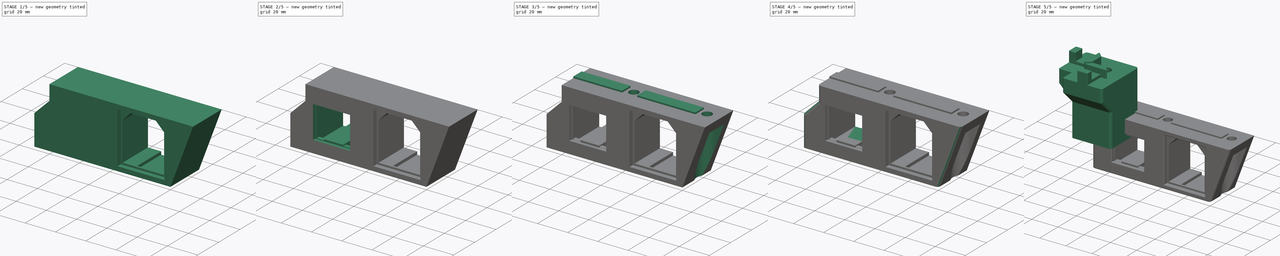
[diagram: build sequence overview — one tinted view per stage of 5, left to right]
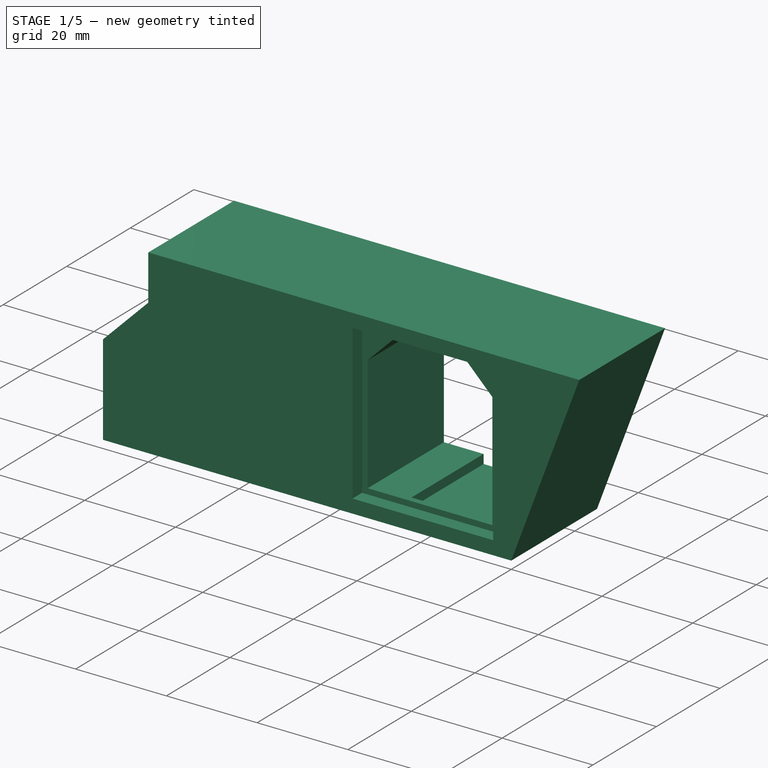
[diagram: stage 1 of 5 — iso view after this stage's code; geometry added in this stage tinted green]
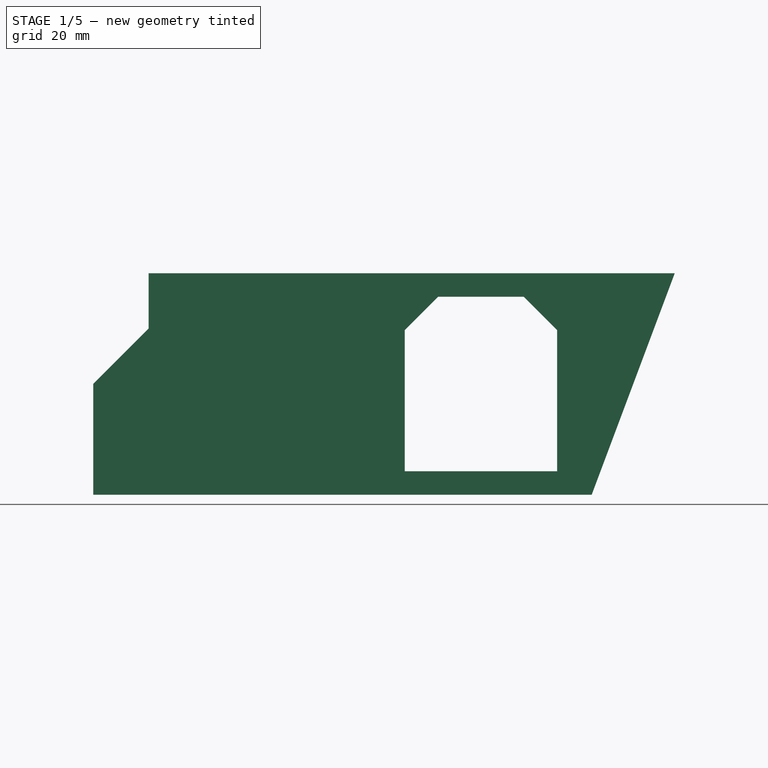
[diagram: stage 1 of 5 — front view after this stage's code; geometry added in this stage tinted green]
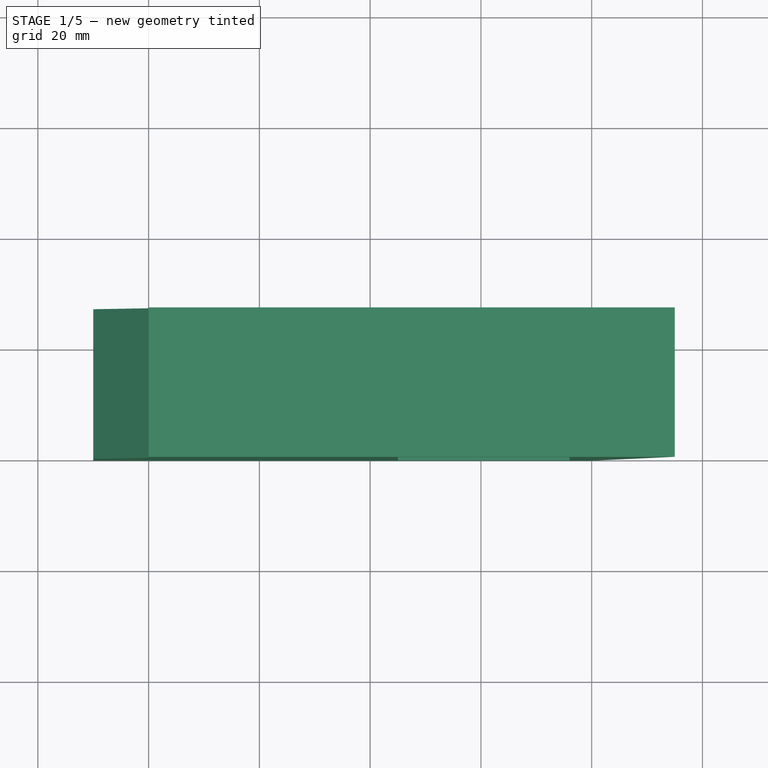
[diagram: stage 1 of 5 — top view after this stage's code; geometry added in this stage tinted green]
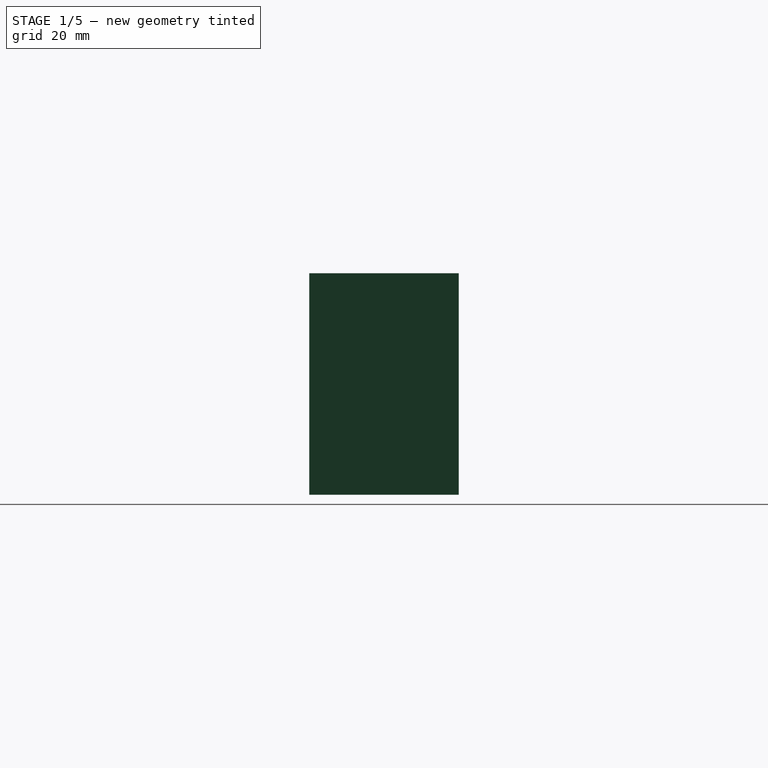
[diagram: stage 1 of 5 — right view after this stage's code; geometry added in this stage tinted green]
FCSTD DOCUMENT  (FreeCAD 0.19R24366 (Git))
Label: outlet-with-switch
License: All rights reserved
LicenseURL: http://en.wikipedia.org/wiki/All_rights_reserved
objects: Sketcher::SketchObject×12, PartDesign::Pocket×10, PartDesign::Chamfer×7, PartDesign::Pad×4, PartDesign::Plane×3, PartDesign::Body×2, Part::Feature×1, PartDesign::FeatureBase×1, PartDesign::Fillet×1
note: 63 computed .brp shape members not serialized (recipe doc carries the construction recipe); baked Part::Feature solids carry a one-line shape summary decoded from their .brp

FEATURE [Part::Feature] Cut008004003004014002002007  label="foot004"
  Placement = pos=(-25,15,-30) rot=(0,0,1;3.14159rad)
  shape: bbox 40.3 x 40.3 x 38.3 mm, 68 faces (baked)
FEATURE [Sketcher::SketchObject] Sketch
  FullyConstrained = true
  MapMode = 5
  Placement = pos=(0,0,0) rot=(1,0,0;1.5708rad)
  Support = -> [XZ_Plane]
  sketch-geometry (6):
    g0: LineSegment StartX=0 StartY=0 StartZ=0 EndX=95 EndY=0 EndZ=0
    g1: LineSegment StartX=0 StartY=0 StartZ=0 EndX=0 EndY=-10 EndZ=0
    g2: LineSegment StartX=0 StartY=-10 StartZ=0 EndX=-10 EndY=-20 EndZ=0
    g3: LineSegment StartX=-10 StartY=-20 StartZ=0 EndX=-10 EndY=-40 EndZ=0
    g4: LineSegment StartX=-10 StartY=-40 StartZ=0 EndX=80 EndY=-40 EndZ=0
    g5: LineSegment StartX=80 StartY=-40 StartZ=0 EndX=95 EndY=0 EndZ=0
  constraints (17):
    c: Horizontal(g0)
    c: Coincident(g0,g-1)
    c: Coincident(g1,g0)
    c: Vertical(g1)
    c: Coincident(g2,g1)
    c: Coincident(g3,g2)
    c: Vertical(g3)
    c: Coincident(g4,g3)
    c: Horizontal(g4)
    c: DistanceY(g1,g1) = 10
    c: Angle(g-2,g2) = 2.35619
    c: DistanceY(g2,g1) = 10
    c: DistanceY(g4,g0) = 40
    c: DistanceX(g0,g4) = 80
    c: Coincident(g0,g5)
    c: Coincident(g5,g4)
    c: DistanceX(g4,g0) = 15
FEATURE [PartDesign::Pad] Pad
  Direction = (1,1,1)
  Length = 27
  Length2 = 100
  Placement = pos=(0,0,0) rot=(1,0,0;1.5708rad)
  Profile = -> Sketch
  Reversed = true
  Type = 0
FEATURE [Sketcher::SketchObject] Sketch001
  FullyConstrained = true
  MapMode = 5
  Placement = pos=(0,0,0) rot=(1,0,0;1.5708rad)
  Support = -> [Pad]
  sketch-geometry (4):
    g0: LineSegment StartX=76 StartY=-3 StartZ=0 EndX=45 EndY=-3 EndZ=0
    g1: LineSegment StartX=45 StartY=-3 StartZ=0 EndX=45 EndY=-37 EndZ=0
    g2: LineSegment StartX=45 StartY=-37 StartZ=0 EndX=76 EndY=-37 EndZ=0
    g3: LineSegment StartX=76 StartY=-37 StartZ=0 EndX=76 EndY=-3 EndZ=0
  constraints (12):
    c: Coincident(g0,g1)
    c: Coincident(g1,g2)
    c: Coincident(g2,g3)
    c: Coincident(g3,g0)
    c: Horizontal(g0)
    c: Horizontal(g2)
    c: Vertical(g1)
    c: Vertical(g3)
    c: DistanceY(g3,g3) = 34
    c: DistanceX(g2,g2) = 31
    c: DistanceY(g0,g-1) = 3
    c: DistanceX(g-1,g1) = 45
FEATURE [PartDesign::Pocket] Pocket
  BaseFeature = -> Pad
  Length = 3
  Length2 = 100
  Placement = pos=(0,0,0) rot=(1,0,0;1.5708rad)
  Profile = -> Sketch001
  Type = 0
FEATURE [Sketcher::SketchObject] Sketch002
  ExternalGeometry = -> [Pocket]
  FullyConstrained = true
  MapMode = 5
  Placement = pos=(0,3,-1e-15) rot=(1,0,0;1.5708rad)
  Support = -> [Pocket]
  sketch-geometry (4):
    g0: LineSegment StartX=46.25 StartY=-4.25 StartZ=0 EndX=73.75 EndY=-4.25 EndZ=0
    g1: LineSegment StartX=73.75 StartY=-4.25 StartZ=0 EndX=73.75 EndY=-35.75 EndZ=0
    g2: LineSegment StartX=73.75 StartY=-35.75 StartZ=0 EndX=46.25 EndY=-35.75 EndZ=0
    g3: LineSegment StartX=46.25 StartY=-35.75 StartZ=0 EndX=46.25 EndY=-4.25 EndZ=0
  constraints (12):
    c: Coincident(g0,g1)
    c: Coincident(g1,g2)
    c: Coincident(g2,g3)
    c: Coincident(g3,g0)
    c: Horizontal(g0)
    c: Horizontal(g2)
    c: Vertical(g1)
    c: Vertical(g3)
    c: DistanceY(g3,g3) = 31.5
    c: DistanceX(g0,g0) = 27.5
    c: DistanceX(g-4,g0) = 1.25
    c: DistanceY(g0,g-4) = 1.25
FEATURE [PartDesign::Pocket] Pocket001
  BaseFeature = -> Pocket
  Length = 5
  Length2 = 100
  Placement = pos=(0,0,0) rot=(1,0,0;1.5708rad)
  Profile = -> Sketch002
  Type = 1
FEATURE [PartDesign::Chamfer] Chamfer
  Angle = 45
  Base = -> Pocket001 [Edge41,Edge37]
  BaseFeature = -> Pocket001
  ChamferType = 0
  FlipDirection = false
  Placement = pos=(0,0,0) rot=(1,0,0;1.5708rad)
  Size = 6
  Size2 = 1
  SupportTransform = false
FEATURE [PartDesign::Plane] DatumPlane
  AttachmentOffset = pos=(0,0,-1.3) rot=(0,0,1;0rad)
  Length = 137.664
  MapMode = 5
  Placement = pos=(0,4.3,-1.9e-15) rot=(1,0,0;1.5708rad)
  ResizeMode = 0
  Support = -> [Chamfer]
  Width = 82.6635
FEATURE [Sketcher::SketchObject] Sketch003
  ExternalGeometry = -> [Chamfer]
  FullyConstrained = true
  MapMode = 5
  Placement = pos=(0,4.3,-1.9e-15) rot=(1,0,0;1.5708rad)
  Support = -> [DatumPlane]
  sketch-geometry (8):
    g0: LineSegment StartX=55 StartY=-4.25 StartZ=0 EndX=65 EndY=-4.25 EndZ=0
    g1: LineSegment StartX=65 StartY=-4.25 StartZ=0 EndX=65 EndY=-2.25 EndZ=0
    g2: LineSegment StartX=65 StartY=-2.25 StartZ=0 EndX=55 EndY=-2.25 EndZ=0
    g3: LineSegment StartX=55 StartY=-2.25 StartZ=0 EndX=55 EndY=-4.25 EndZ=0
    g4: LineSegment StartX=55 StartY=-35.75 StartZ=0 EndX=65 EndY=-35.75 EndZ=0
    g5: LineSegment StartX=65 StartY=-35.75 StartZ=0 EndX=65 EndY=-37.75 EndZ=0
    g6: LineSegment StartX=65 StartY=-37.75 StartZ=0 EndX=55 EndY=-37.75 EndZ=0
    g7: LineSegment StartX=55 StartY=-37.75 StartZ=0 EndX=55 EndY=-35.75 EndZ=0
  constraints (24):
    c: Coincident(g0,g1)
    c: Coincident(g1,g2)
    c: Coincident(g2,g3)
    c: Coincident(g3,g0)
    c: Horizontal(g0)
    c: Horizontal(g2)
    c: Vertical(g1)
    c: Vertical(g3)
    c: PointOnObject(g0,g-4)
    c: Coincident(g4,g5)
    c: Coincident(g5,g6)
    c: Coincident(g6,g7)
    c: Coincident(g7,g4)
    c: Horizontal(g4)
    c: Horizontal(g6)
    c: Vertical(g5)
    c: Vertical(g7)
    c: PointOnObject(g4,g-3)
    c: DistanceX(g6,g6) = 10
    c: DistanceY(g7,g7) = 2
    c: DistanceX(g-3,g4) = 8.75
    c: Vertical(g4,g0)
    c: Vertical(g4,g0)
    c: DistanceY(g3,g3) = 2
FEATURE [PartDesign::Pocket] Pocket002
  BaseFeature = -> Chamfer
  Length = 5
  Length2 = 100
  Placement = pos=(0,0,0) rot=(1,0,0;1.5708rad)
  Profile = -> Sketch003
  Type = 1
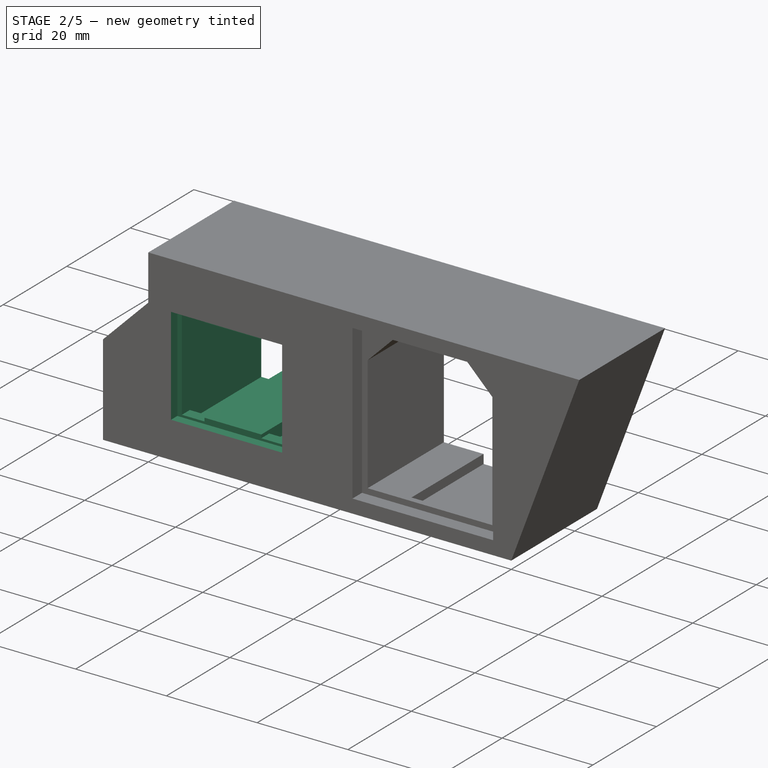
[diagram: stage 2 of 5 — iso view after this stage's code; geometry added in this stage tinted green]
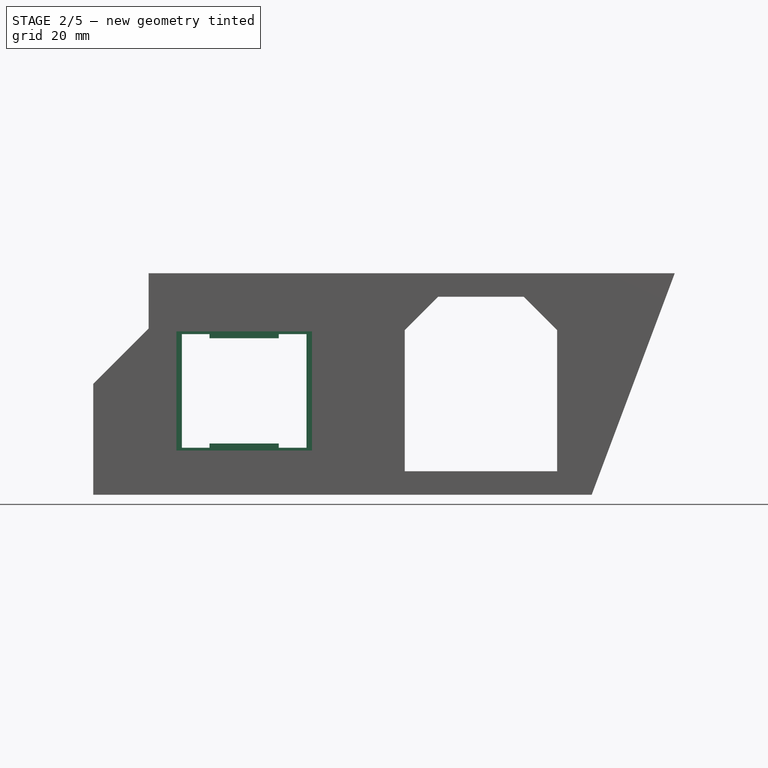
[diagram: stage 2 of 5 — front view after this stage's code; geometry added in this stage tinted green]
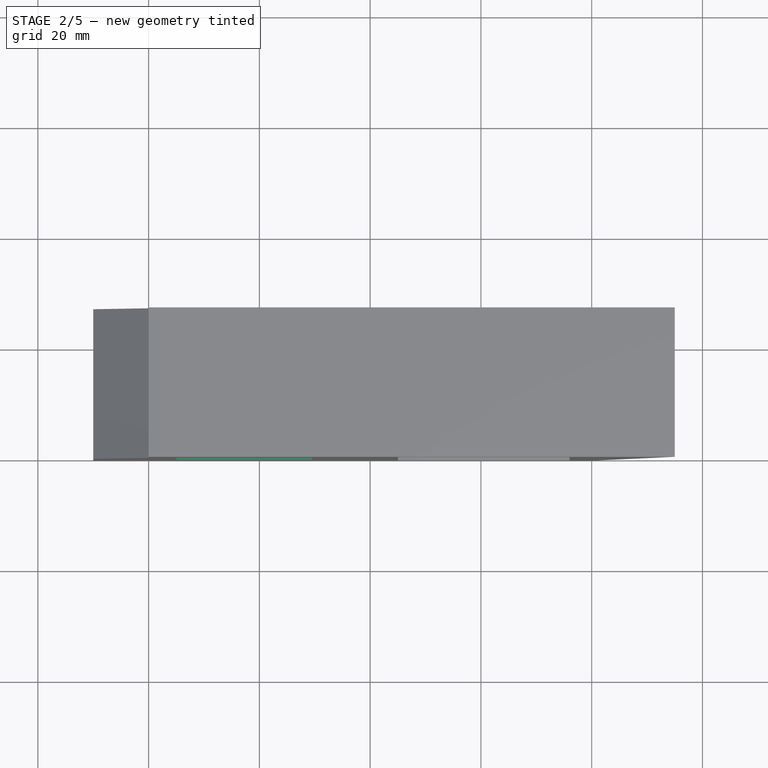
[diagram: stage 2 of 5 — top view after this stage's code; geometry added in this stage tinted green]
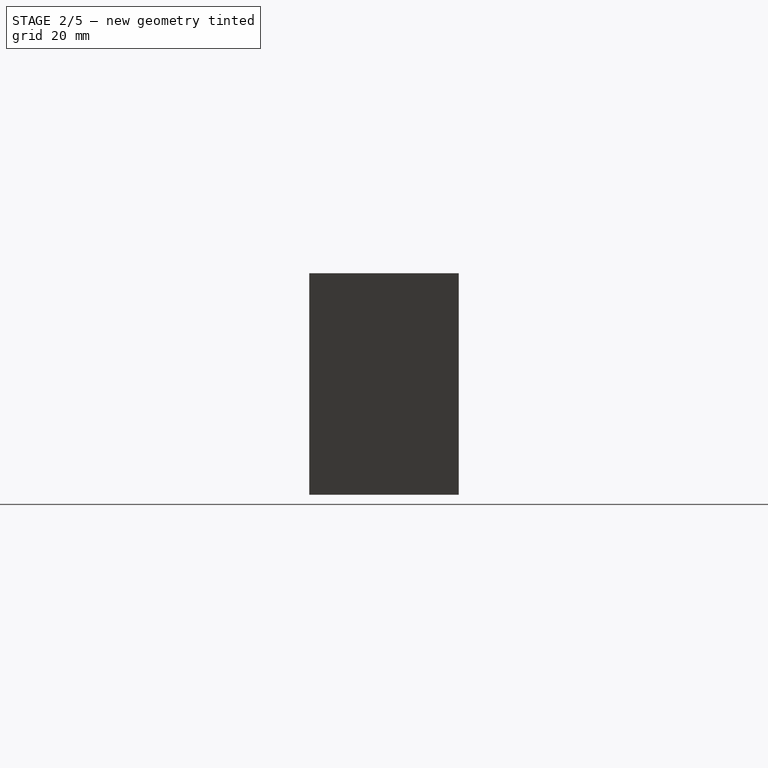
[diagram: stage 2 of 5 — right view after this stage's code; geometry added in this stage tinted green]
FEATURE [Sketcher::SketchObject] Sketch004
  ExternalGeometry = -> [Pocket002]
  FullyConstrained = true
  MapMode = 5
  Placement = pos=(0,0,0) rot=(1,0,0;1.5708rad)
  Support = -> [Pocket002]
  sketch-geometry (4):
    g0: LineSegment StartX=5 StartY=-10.5 StartZ=0 EndX=29.5 EndY=-10.5 EndZ=0
    g1: LineSegment StartX=29.5 StartY=-10.5 StartZ=0 EndX=29.5 EndY=-32 EndZ=0
    g2: LineSegment StartX=29.5 StartY=-32 StartZ=0 EndX=5 EndY=-32 EndZ=0
    g3: LineSegment StartX=5 StartY=-32 StartZ=0 EndX=5 EndY=-10.5 EndZ=0
  constraints (12):
    c: Coincident(g0,g1)
    c: Coincident(g1,g2)
    c: Coincident(g2,g3)
    c: Coincident(g3,g0)
    c: Horizontal(g0)
    c: Horizontal(g2)
    c: Vertical(g1)
    c: Vertical(g3)
    c: DistanceX(g0,g0) = 24.5
    c: DistanceY(g3,g3) = 21.5
    c: DistanceY(g-4,g2) = 8
    c: DistanceX(g-4,g2) = 15
FEATURE [PartDesign::Pocket] Pocket003
  BaseFeature = -> Pocket002
  Length = 2
  Length2 = 100
  Placement = pos=(0,0,0) rot=(1,0,0;1.5708rad)
  Profile = -> Sketch004
  Type = 0
FEATURE [Sketcher::SketchObject] Sketch005
  ExternalGeometry = -> [Pocket003]
  FullyConstrained = true
  MapMode = 5
  Placement = pos=(0,2,-1.1e-15) rot=(1,0,0;1.5708rad)
  Support = -> [Pocket003]
  sketch-geometry (4):
    g0: LineSegment StartX=6 StartY=-11.75 StartZ=0 EndX=28.5 EndY=-11.75 EndZ=0
    g1: LineSegment StartX=28.5 StartY=-11.75 StartZ=0 EndX=28.5 EndY=-30.75 EndZ=0
    g2: LineSegment StartX=28.5 StartY=-30.75 StartZ=0 EndX=6 EndY=-30.75 EndZ=0
    g3: LineSegment StartX=6 StartY=-30.75 StartZ=0 EndX=6 EndY=-11.75 EndZ=0
  constraints (14):
    c: Coincident(g0,g1)
    c: Coincident(g1,g2)
    c: Coincident(g2,g3)
    c: Coincident(g3,g0)
    c: Horizontal(g0)
    c: Horizontal(g2)
    c: Vertical(g1)
    c: Vertical(g3)
    c: DistanceX(g0,g0) = 22.5
    c: DistanceY(g3,g3) = 19
    c: DistanceX(g-3,g-3) = 24.5
    c: DistanceY(g-4,g-4) = 21.5
    c: DistanceX(g-3,g0) = 1
    c: DistanceY(g0,g-4) = 1.25
FEATURE [PartDesign::Pocket] Pocket004
  BaseFeature = -> Pocket003
  Length = 5
  Length2 = 100
  Placement = pos=(0,0,0) rot=(1,0,0;1.5708rad)
  Profile = -> Sketch005
  Type = 1
FEATURE [Sketcher::SketchObject] Sketch006
  ExternalGeometry = -> [Pocket004]
  FullyConstrained = true
  MapMode = 5
  Placement = pos=(0,2,-1.3e-15) rot=(1,0,0;1.5708rad)
  Support = -> [Pocket004]
  sketch-geometry (16):
    g0: LineSegment StartX=6 StartY=-11.75 StartZ=0 EndX=11 EndY=-11.75 EndZ=0
    g1: LineSegment StartX=11 StartY=-11.75 StartZ=0 EndX=11 EndY=-11 EndZ=0
    g2: LineSegment StartX=11 StartY=-11 StartZ=0 EndX=6 EndY=-11 EndZ=0
    g3: LineSegment StartX=6 StartY=-11 StartZ=0 EndX=6 EndY=-11.75 EndZ=0
    g4: LineSegment StartX=28.5 StartY=-11.75 StartZ=0 EndX=23.5 EndY=-11.75 EndZ=0
    g5: LineSegment StartX=23.5 StartY=-11.75 StartZ=0 EndX=23.5 EndY=-11 EndZ=0
    g6: LineSegment StartX=23.5 StartY=-11 StartZ=0 EndX=28.5 EndY=-11 EndZ=0
    g7: LineSegment StartX=28.5 StartY=-11 StartZ=0 EndX=28.5 EndY=-11.75 EndZ=0
    g8: LineSegment StartX=6 StartY=-30.75 StartZ=0 EndX=11 EndY=-30.75 EndZ=0
    g9: LineSegment StartX=11 StartY=-30.75 StartZ=0 EndX=11 EndY=-31.5 EndZ=0
    g10: LineSegment StartX=11 StartY=-31.5 StartZ=0 EndX=6 EndY=-31.5 EndZ=0
    g11: LineSegment StartX=6 StartY=-31.5 StartZ=0 EndX=6 EndY=-30.75 EndZ=0
    g12: LineSegment StartX=28.5 StartY=-30.75 StartZ=0 EndX=23.5 EndY=-30.75 EndZ=0
    g13: LineSegment StartX=23.5 StartY=-30.75 StartZ=0 EndX=23.5 EndY=-31.5 EndZ=0
    g14: LineSegment StartX=23.5 StartY=-31.5 StartZ=0 EndX=28.5 EndY=-31.5 EndZ=0
    g15: LineSegment StartX=28.5 StartY=-31.5 StartZ=0 EndX=28.5 EndY=-30.75 EndZ=0
  constraints (44):
    c: Coincident(g0,g1)
    c: Coincident(g1,g2)
    c: Coincident(g2,g3)
    c: Coincident(g3,g0)
    c: Horizontal(g0)
    c: Horizontal(g2)
    c: Vertical(g1)
    c: Vertical(g3)
    c: Coincident(g0,g-3)
    c: Coincident(g4,g5)
    c: Coincident(g5,g6)
    c: Coincident(g6,g7)
    c: Coincident(g7,g4)
    c: Horizontal(g4)
    c: Horizontal(g6)
    c: Vertical(g5)
    c: Vertical(g7)
    c: Coincident(g4,g-3)
    c: Coincident(g8,g9)
    c: Coincident(g9,g10)
    c: Coincident(g10,g11)
    c: Coincident(g11,g8)
    c: Horizontal(g8)
    c: Horizontal(g10)
    c: Vertical(g9)
    c: Vertical(g11)
    c: Coincident(g8,g-4)
    c: Coincident(g12,g13)
    c: Coincident(g13,g14)
    c: Coincident(g14,g15)
    c: Coincident(g15,g12)
    c: Horizontal(g12)
    c: Horizontal(g14)
    c: Vertical(g13)
    c: Vertical(g15)
    c: Coincident(g12,g-4)
    c: Equal(g11,g13)
    c: DistanceY(g11,g11) = 0.75
    c: Equal(g0,g4)
    c: Equal(g10,g14)
    c: DistanceX(g14,g14) = 5
    c: Equal(g6,g14)
    c: Equal(g1,g5)
    c: Equal(g5,g9)
FEATURE [PartDesign::Pocket] Pocket005
  BaseFeature = -> Pocket004
  Length = 5
  Length2 = 100
  Placement = pos=(0,0,0) rot=(1,0,0;1.5708rad)
  Profile = -> Sketch006
  Type = 1
FEATURE [PartDesign::Plane] DatumPlane001
  AttachmentOffset = pos=(0,0,-2.5) rot=(0,0,1;0rad)
  Length = 137.664
  MapMode = 5
  Placement = pos=(0,4.5,-3.4e-15) rot=(1,0,0;1.5708rad)
  ResizeMode = 0
  Support = -> [Pocket005]
  Width = 82.6635
FEATURE [Sketcher::SketchObject] Sketch007
  ExternalGeometry = -> [Pocket005]
  FullyConstrained = true
  MapMode = 5
  Placement = pos=(0,4.5,-3.4e-15) rot=(1,0,0;1.5708rad)
  Support = -> [DatumPlane001]
  sketch-geometry (16):
    g0: LineSegment StartX=6 StartY=-11 StartZ=0 EndX=11 EndY=-11 EndZ=0
    g1: LineSegment StartX=11 StartY=-11 StartZ=0 EndX=11 EndY=-9 EndZ=0
    g2: LineSegment StartX=11 StartY=-9 StartZ=0 EndX=6 EndY=-9 EndZ=0
    g3: LineSegment StartX=6 StartY=-9 StartZ=0 EndX=6 EndY=-11 EndZ=0
    g4: LineSegment StartX=23.5 StartY=-11 StartZ=0 EndX=28.5 EndY=-11 EndZ=0
    g5: LineSegment StartX=28.5 StartY=-11 StartZ=0 EndX=28.5 EndY=-9 EndZ=0
    g6: LineSegment StartX=28.5 StartY=-9 StartZ=0 EndX=23.5 EndY=-9 EndZ=0
    g7: LineSegment StartX=23.5 StartY=-9 StartZ=0 EndX=23.5 EndY=-11 EndZ=0
    g8: LineSegment StartX=6 StartY=-31.5 StartZ=0 EndX=11 EndY=-31.5 EndZ=0
    g9: LineSegment StartX=11 StartY=-31.5 StartZ=0 EndX=11 EndY=-33.5 EndZ=0
    g10: LineSegment StartX=11 StartY=-33.5 StartZ=0 EndX=6 EndY=-33.5 EndZ=0
    g11: LineSegment StartX=6 StartY=-33.5 StartZ=0 EndX=6 EndY=-31.5 EndZ=0
    g12: LineSegment StartX=23.5 StartY=-31.5 StartZ=0 EndX=28.5 EndY=-31.5 EndZ=0
    g13: LineSegment StartX=28.5 StartY=-31.5 StartZ=0 EndX=28.5 EndY=-33.5 EndZ=0
    g14: LineSegment StartX=28.5 StartY=-33.5 StartZ=0 EndX=23.5 EndY=-33.5 EndZ=0
    g15: LineSegment StartX=23.5 StartY=-33.5 StartZ=0 EndX=23.5 EndY=-31.5 EndZ=0
  constraints (44):
    c: Coincident(g0,g1)
    c: Coincident(g1,g2)
    c: Coincident(g2,g3)
    c: Coincident(g3,g0)
    c: Horizontal(g0)
    c: Horizontal(g2)
    c: Vertical(g1)
    c: Vertical(g3)
    c: Coincident(g0,g-3)
    c: Coincident(g4,g5)
    c: Coincident(g5,g6)
    c: Coincident(g6,g7)
    c: Coincident(g7,g4)
    c: Horizontal(g4)
    c: Horizontal(g6)
    c: Vertical(g5)
    c: Vertical(g7)
    c: Coincident(g4,g-4)
    c: Coincident(g8,g9)
    c: Coincident(g9,g10)
    c: Coincident(g10,g11)
    c: Coincident(g11,g8)
    c: Horizontal(g8)
    c: Horizontal(g10)
    c: Vertical(g9)
    c: Vertical(g11)
    c: Coincident(g8,g-5)
    c: Coincident(g12,g13)
    c: Coincident(g13,g14)
    c: Coincident(g14,g15)
    c: Coincident(g15,g12)
    c: Horizontal(g12)
    c: Horizontal(g14)
    c: Vertical(g13)
    c: Vertical(g15)
    c: Coincident(g12,g-6)
    c: Vertical(g1,g9)
    c: Vertical(g9,g-5)
    c: Vertical(g13,g-4)
    c: Vertical(g-4,g5)
    c: Equal(g7,g1)
    c: DistanceY(g5,g5) = 2
    c: Equal(g15,g9)
    c: Equal(g9,g1)
FEATURE [PartDesign::Pocket] Pocket006
  BaseFeature = -> Pocket005
  Length = 5
  Length2 = 100
  Placement = pos=(0,0,0) rot=(1,0,0;1.5708rad)
  Profile = -> Sketch007
  Type = 1
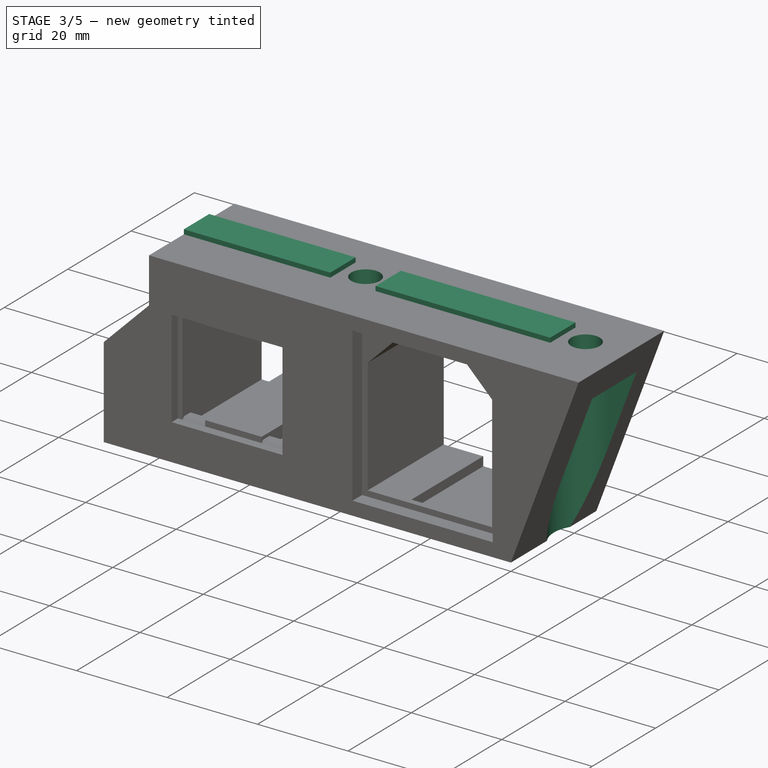
[diagram: stage 3 of 5 — iso view after this stage's code; geometry added in this stage tinted green]
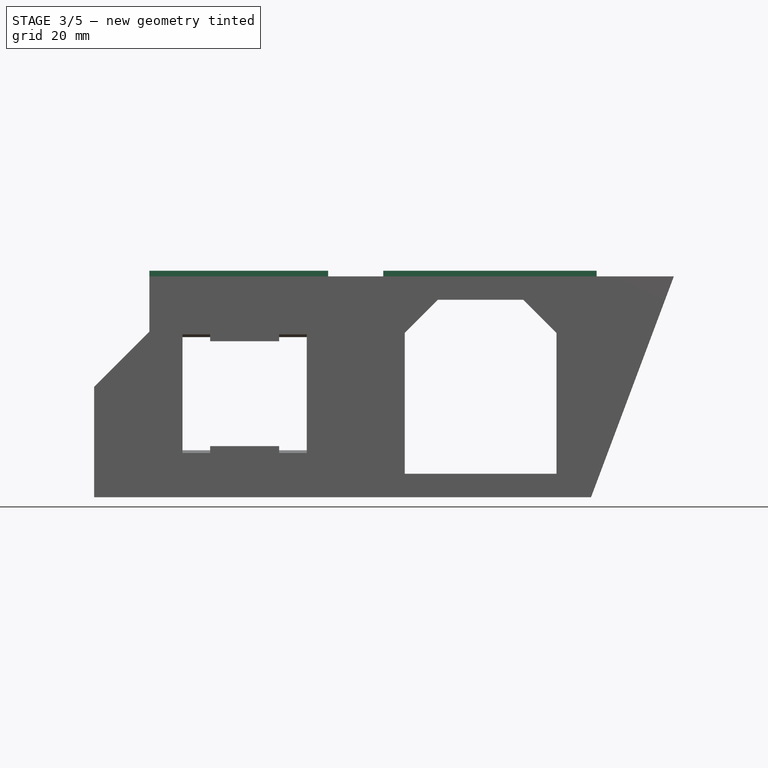
[diagram: stage 3 of 5 — front view after this stage's code; geometry added in this stage tinted green]
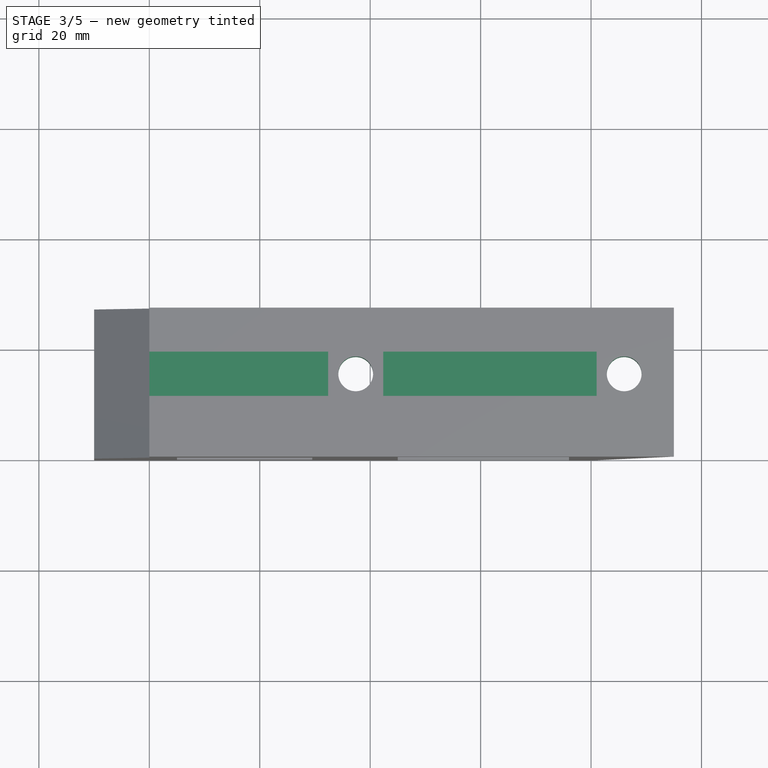
[diagram: stage 3 of 5 — top view after this stage's code; geometry added in this stage tinted green]
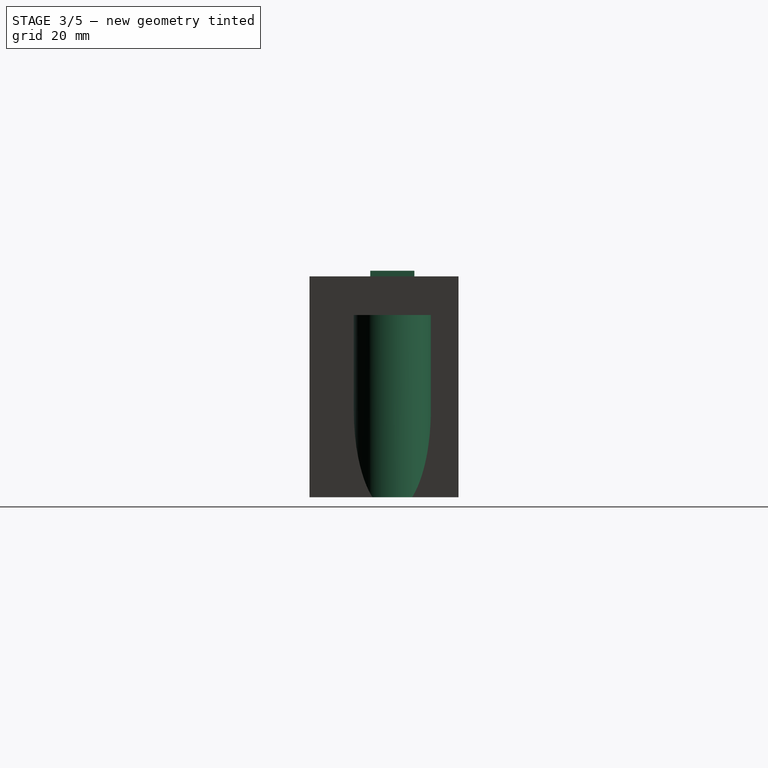
[diagram: stage 3 of 5 — right view after this stage's code; geometry added in this stage tinted green]
FEATURE [PartDesign::Chamfer] Chamfer001
  Angle = 45
  Base = -> Pocket006 [Edge91,Edge77,Edge63,Edge105]
  BaseFeature = -> Pocket006
  ChamferType = 0
  FlipDirection = false
  Placement = pos=(0,0,0) rot=(1,0,0;1.5708rad)
  Size = 1.99
  Size2 = 1
  SupportTransform = false
FEATURE [PartDesign::Chamfer] Chamfer002
  Angle = 45
  Base = -> Chamfer001 [Edge66,Edge70,Edge58,Edge76]
  BaseFeature = -> Chamfer001
  ChamferType = 0
  FlipDirection = false
  Placement = pos=(0,0,0) rot=(1,0,0;1.5708rad)
  Size = 0.49
  Size2 = 1
  SupportTransform = false
FEATURE [PartDesign::Body] Body001  label="foot-extend"
  BaseFeature = -> Cut008004003004014002002007
  Group = -> [BaseFeature,Pad001,Pad002]
  Origin = -> Origin001
  Placement = pos=(-25,15,-30) rot=(0,0,1;3.14159rad)
  Tip = -> Pad002
FEATURE [PartDesign::Plane] DatumPlane002
  AttachmentOffset = pos=(0,0,-7) rot=(0,0,1;0rad)
  Length = 135.799
  MapMode = 5
  Placement = pos=(0,-7e-15,-7) rot=(0,0,1;3.14159rad)
  ResizeMode = 0
  Support = -> [Chamfer002]
  Width = 67.7987
FEATURE [Sketcher::SketchObject] Sketch008
  ExternalGeometry = -> [Chamfer002]
  FullyConstrained = true
  MapMode = 5
  Placement = pos=(0,-7e-15,-7) rot=(0,0,1;3.14159rad)
  Support = -> [DatumPlane002]
  sketch-geometry (5):
    g0: Circle CenterX=-37.375 CenterY=-15 CenterZ=0 NormalX=0 NormalY=0 NormalZ=1 AngleXU=0 Radius=7
    g1: ArcOfCircle CenterX=-86 CenterY=-15 CenterZ=0 NormalX=0 NormalY=0 NormalZ=1 AngleXU=0 Radius=7 StartAngle=4.71239 EndAngle=7.85398
    g2: LineSegment StartX=-86 StartY=-8 StartZ=0 EndX=-95 EndY=-8 EndZ=0
    g3: LineSegment StartX=-95 StartY=-8 StartZ=0 EndX=-95 EndY=-22 EndZ=0
    g4: LineSegment StartX=-95 StartY=-22 StartZ=0 EndX=-86 EndY=-22 EndZ=0
  constraints (16):
    c: DistanceX(g-3,g-4) = 17.75
    c: DistanceX(g-3,g0) = 8.875
    c: DistanceY(g0,g-1) = 15
    c: Radius(g0) = 7
    c: Vertical(g1,g1)
    c: Vertical(g1,g1)
    c: Horizontal(g1,g0)
    c: Radius(g1) = 7
    c: Tangent(g1,g2) = -1.5708
    c: Coincident(g2,g3)
    c: PointOnObject(g3,g-5)
    c: Vertical(g3)
    c: Coincident(g3,g4)
    c: Coincident(g4,g1)
    c: Horizontal(g4)
    c: DistanceX(g-5,g1) = 9
FEATURE [PartDesign::Pocket] Pocket007
  BaseFeature = -> Chamfer002
  Length = 5
  Length2 = 100
  Placement = pos=(0,0,0) rot=(1,0,0;1.5708rad)
  Profile = -> Sketch008
  Type = 1
FEATURE [Sketcher::SketchObject] Sketch009
  ExternalGeometry = -> [Pocket007]
  FullyConstrained = true
  MapMode = 5
  Placement = pos=(0,-8e-15,-7) rot=(1,0,0;3.14159rad)
  Support = -> [Pocket007]
  sketch-geometry (2):
    g0: Circle CenterX=37.375 CenterY=-15 CenterZ=0 NormalX=0 NormalY=0 NormalZ=1 AngleXU=0 Radius=3.15
    g1: Circle CenterX=86 CenterY=-15 CenterZ=0 NormalX=0 NormalY=0 NormalZ=1 AngleXU=0 Radius=3.15
  constraints (4):
    c: Coincident(g0,g-4)
    c: Coincident(g1,g-3)
    c: Equal(g1,g0)
    c: Radius(g0) = 3.15
FEATURE [PartDesign::Pocket] Pocket008
  BaseFeature = -> Pocket007
  Length = 5
  Length2 = 100
  Placement = pos=(0,0,0) rot=(1,0,0;1.5708rad)
  Profile = -> Sketch009
  Type = 1
FEATURE [Sketcher::SketchObject] Sketch010
  ExternalGeometry = -> [Pocket008]
  FullyConstrained = true
  MapMode = 5
  Placement = pos=(0,0,0) rot=(0,0,1;3.14159rad)
  Support = -> [Pocket008]
  sketch-geometry (8):
    g0: LineSegment StartX=-81 StartY=-11 StartZ=0 EndX=-42.375 EndY=-11 EndZ=0
    g1: LineSegment StartX=-42.375 StartY=-11 StartZ=0 EndX=-42.375 EndY=-19 EndZ=0
    g2: LineSegment StartX=-42.375 StartY=-19 StartZ=0 EndX=-81 EndY=-19 EndZ=0
    g3: LineSegment StartX=-81 StartY=-19 StartZ=0 EndX=-81 EndY=-11 EndZ=0
    g4: LineSegment StartX=0 StartY=-11 StartZ=0 EndX=-32.375 EndY=-11 EndZ=0
    g5: LineSegment StartX=-32.375 StartY=-11 StartZ=0 EndX=-32.375 EndY=-19 EndZ=0
    g6: LineSegment StartX=-32.375 StartY=-19 StartZ=0 EndX=0 EndY=-19 EndZ=0
    g7: LineSegment StartX=0 StartY=-19 StartZ=0 EndX=0 EndY=-11 EndZ=0
  constraints (24):
    c: Coincident(g0,g1)
    c: Coincident(g1,g2)
    c: Coincident(g2,g3)
    c: Coincident(g3,g0)
    c: Horizontal(g0)
    c: Horizontal(g2)
    c: Vertical(g1)
    c: Vertical(g3)
    c: Coincident(g4,g5)
    c: Coincident(g5,g6)
    c: Coincident(g6,g7)
    c: Coincident(g7,g4)
    c: Horizontal(g4)
    c: Horizontal(g6)
    c: Vertical(g5)
    c: Vertical(g7)
    c: PointOnObject(g4,g-2)
    c: Horizontal(g0,g4)
    c: Horizontal(g1,g5)
    c: DistanceY(g5,g5) = 8
    c: DistanceY(g-4,g4) = 4
    c: DistanceX(g-4,g4) = 5
    c: DistanceX(g0,g-4) = 5
    c: DistanceX(g-3,g0) = 5
FEATURE [PartDesign::Pad] Pad003
  BaseFeature = -> Pocket008
  Direction = (1,1,1)
  Length = 1
  Length2 = 100
  Placement = pos=(0,0,0) rot=(1,0,0;1.5708rad)
  Profile = -> Sketch010
  Type = 0
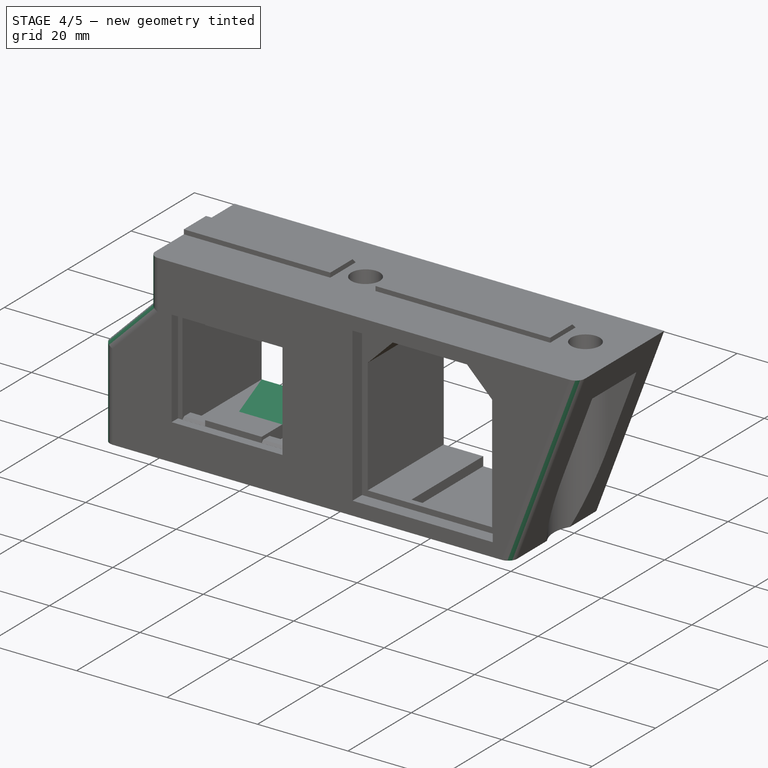
[diagram: stage 4 of 5 — iso view after this stage's code; geometry added in this stage tinted green]
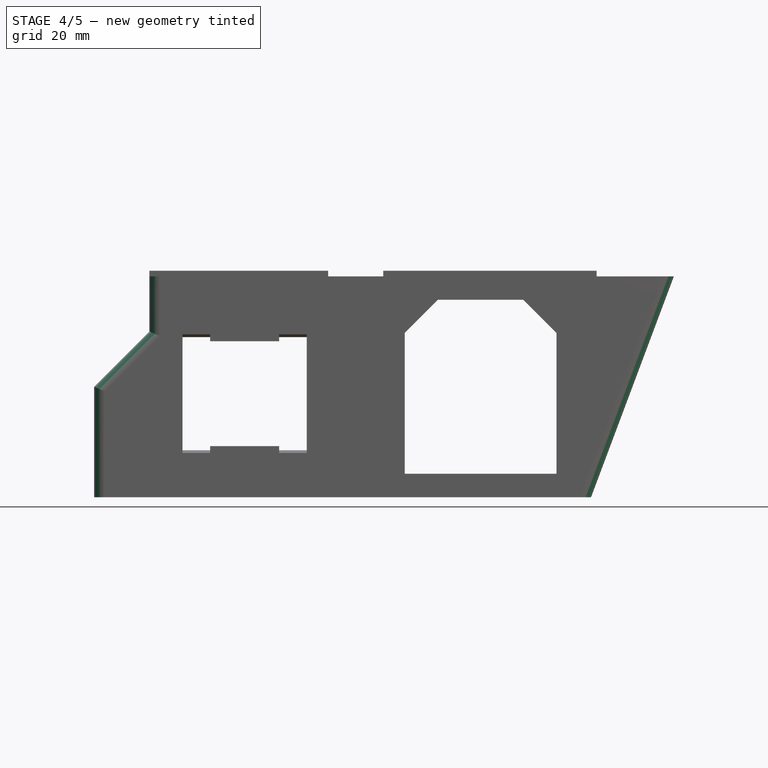
[diagram: stage 4 of 5 — front view after this stage's code; geometry added in this stage tinted green]
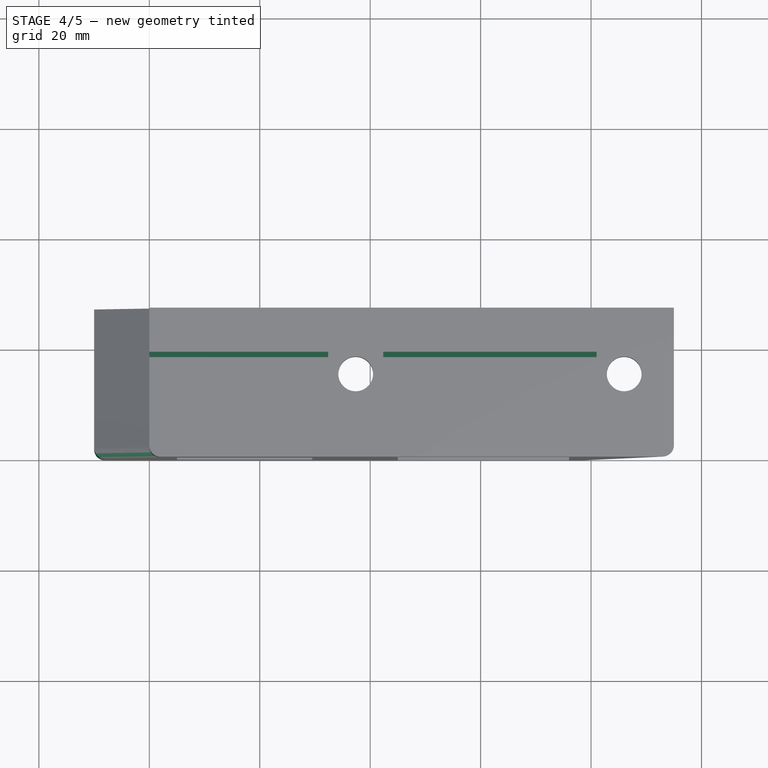
[diagram: stage 4 of 5 — top view after this stage's code; geometry added in this stage tinted green]
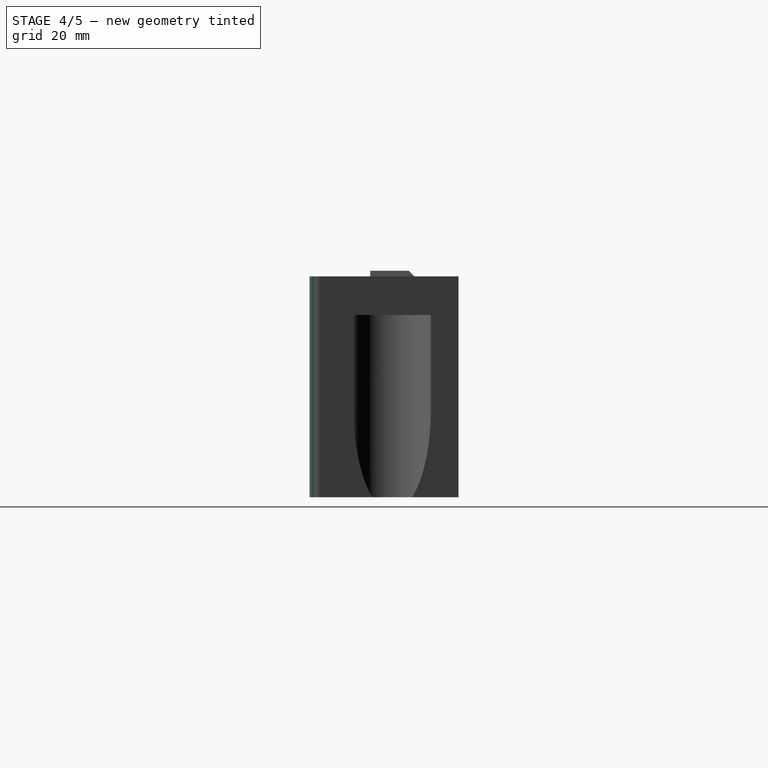
[diagram: stage 4 of 5 — right view after this stage's code; geometry added in this stage tinted green]
FEATURE [PartDesign::Chamfer] Chamfer003
  Angle = 45
  Base = -> Pad003 [Edge228,Edge215]
  BaseFeature = -> Pad003
  ChamferType = 0
  FlipDirection = false
  Placement = pos=(0,0,0) rot=(1,0,0;1.5708rad)
  Size = 0.99
  Size2 = 1
  SupportTransform = false
FEATURE [Sketcher::SketchObject] Sketch011
  ExternalGeometry = -> [Chamfer003]
  FullyConstrained = true
  MapMode = 5
  Placement = pos=(0,27,-3e-14) rot=(-1,0,0;1.5708rad)
  Support = -> [Chamfer003]
  sketch-geometry (8):
    g0: LineSegment StartX=23.5 StartY=11.75 StartZ=0 EndX=11 EndY=11.75 EndZ=0
    g1: LineSegment StartX=11 StartY=11.75 StartZ=0 EndX=11 EndY=9 EndZ=0
    g2: LineSegment StartX=11 StartY=9 StartZ=0 EndX=23.5 EndY=9 EndZ=0
    g3: LineSegment StartX=23.5 StartY=9 StartZ=0 EndX=23.5 EndY=11.75 EndZ=0
    g4: LineSegment StartX=23.5 StartY=30.75 StartZ=0 EndX=11 EndY=30.75 EndZ=0
    g5: LineSegment StartX=11 StartY=30.75 StartZ=0 EndX=11 EndY=33.5 EndZ=0
    g6: LineSegment StartX=11 StartY=33.5 StartZ=0 EndX=23.5 EndY=33.5 EndZ=0
    g7: LineSegment StartX=23.5 StartY=33.5 StartZ=0 EndX=23.5 EndY=30.75 EndZ=0
  constraints (20):
    c: Coincident(g0,g1)
    c: Coincident(g1,g2)
    c: Coincident(g2,g3)
    c: Coincident(g3,g0)
    c: Horizontal(g0)
    c: Horizontal(g2)
    c: Vertical(g1)
    c: Vertical(g3)
    c: Coincident(g0,g-6)
    c: Coincident(g1,g-5)
    c: Coincident(g4,g5)
    c: Coincident(g5,g6)
    c: Coincident(g6,g7)
    c: Coincident(g7,g4)
    c: Horizontal(g4)
    c: Horizontal(g6)
    c: Vertical(g5)
    c: Vertical(g7)
    c: Coincident(g4,g-4)
    c: Coincident(g5,g-3)
FEATURE [PartDesign::Pocket] Pocket009
  BaseFeature = -> Chamfer003
  Length = 15
  Length2 = 100
  Placement = pos=(0,0,0) rot=(1,0,0;1.5708rad)
  Profile = -> Sketch011
  Refine = true
  Type = 0
FEATURE [PartDesign::Chamfer] Chamfer004
  Angle = 45
  Base = -> Pocket009 [Edge201,Edge207]
  BaseFeature = -> Pocket009
  ChamferType = 1
  FlipDirection = false
  Placement = pos=(0,0,0) rot=(1,0,0;1.5708rad)
  Size = 3.5
  Size2 = 2.74
  SupportTransform = false
FEATURE [PartDesign::Fillet] Fillet
  Base = -> Chamfer004 [Edge128,Edge126,Edge124,Edge125]
  BaseFeature = -> Chamfer004
  Placement = pos=(0,0,0) rot=(1,0,0;1.5708rad)
  Radius = 2
  SupportTransform = false
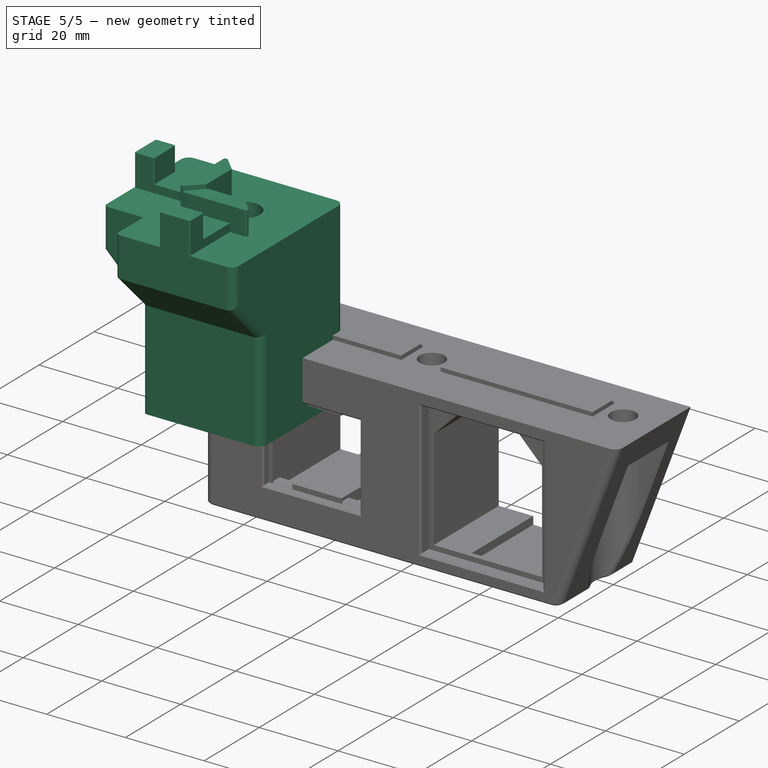
[diagram: stage 5 of 5 — iso view after this stage's code; geometry added in this stage tinted green]
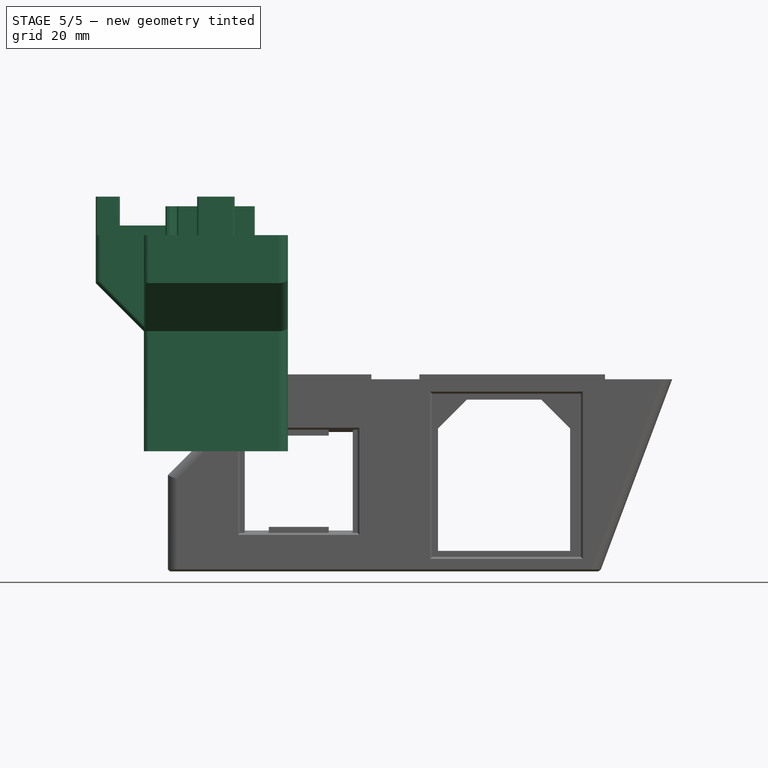
[diagram: stage 5 of 5 — front view after this stage's code; geometry added in this stage tinted green]
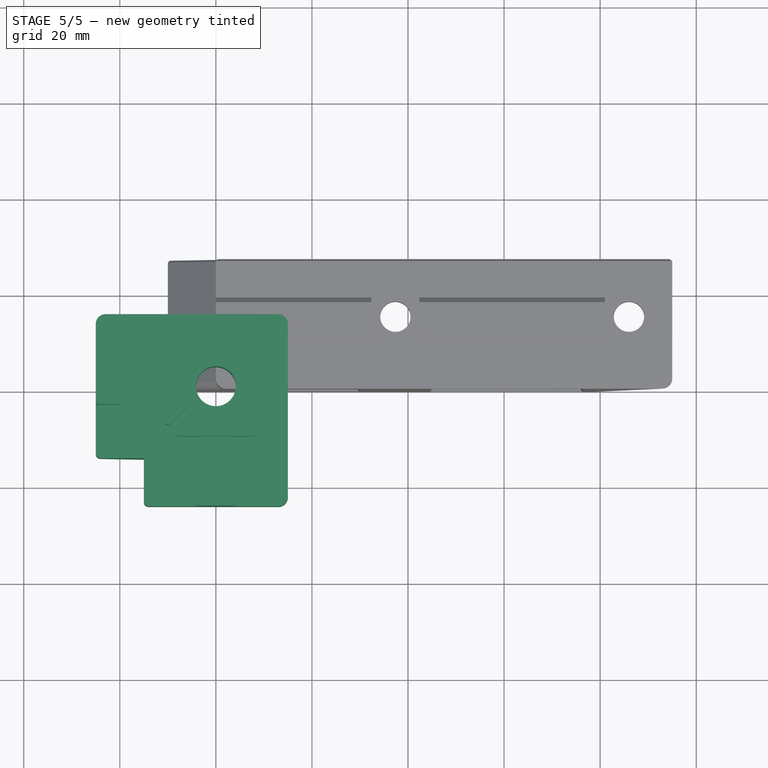
[diagram: stage 5 of 5 — top view after this stage's code; geometry added in this stage tinted green]
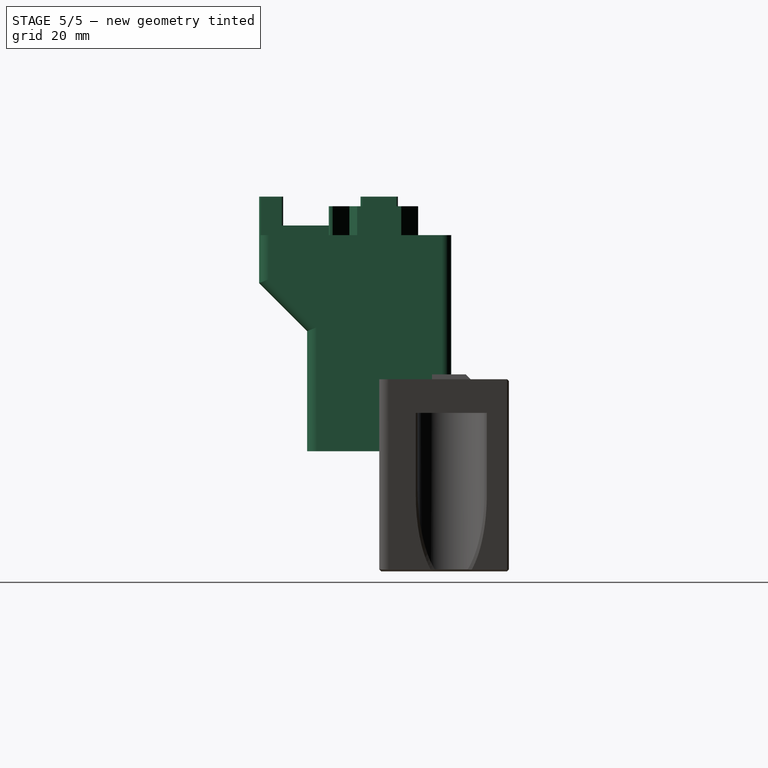
[diagram: stage 5 of 5 — right view after this stage's code; geometry added in this stage tinted green]
FEATURE [PartDesign::FeatureBase] BaseFeature
  BaseFeature = -> Cut008004003004014002002007
FEATURE [PartDesign::Pad] Pad001
  BaseFeature = -> BaseFeature
  Direction = (1,1,1)
  Length = 15
  Length2 = 100
  Profile = -> BaseFeature [Face36]
  Refine = true
  Type = 0
FEATURE [PartDesign::Pad] Pad002
  BaseFeature = -> Pad001
  Direction = (1,1,1)
  Length = 15
  Length2 = 100
  Profile = -> Pad001 [Face1]
  Refine = true
  Type = 0
FEATURE [PartDesign::Chamfer] Chamfer005
  Angle = 45
  Base = -> Fillet [Edge42]
  BaseFeature = -> Fillet
  ChamferType = 0
  FlipDirection = false
  Placement = pos=(0,0,0) rot=(1,0,0;1.5708rad)
  Size = 1
  Size2 = 1
  SupportTransform = false
FEATURE [PartDesign::Chamfer] Chamfer006
  Angle = 45
  Base = -> Chamfer005 [Face8,Edge9,Edge8,Edge6,Edge4,Edge2,Edge3,Edge5,Edge20,Edge17,Edge18,Edge19,Edge24,Edge23,Edge22,Edge21,Edge33,Edge34,Edge36,Edge35]
  BaseFeature = -> Chamfer005
  ChamferType = 0
  FlipDirection = false
  Placement = pos=(0,0,0) rot=(1,0,0;1.5708rad)
  Size = 0.4
  Size2 = 1
  SupportTransform = false
FEATURE [PartDesign::Body] Body
  Group = -> [Sketch,Pad,Sketch001,Pocket,Sketch002,Pocket001,Chamfer,DatumPlane,Sketch003,Pocket002,Sketch004,Pocket003,Sketch005,Pocket004,Sketch006,Pocket005,DatumPlane001,Sketch007,Pocket006,Chamfer001,Chamfer002,DatumPlane002,Sketch008,Pocket007,Sketch009,Pocket008,Sketch010,Pad003,Chamfer003,Sketch011,Pocket009,Chamfer004,Fillet,Chamfer005,Chamfer006]
  Origin = -> Origin
  Placement = pos=(0,0,0) rot=(1,0,0;4.71239rad)
  Tip = -> Chamfer006
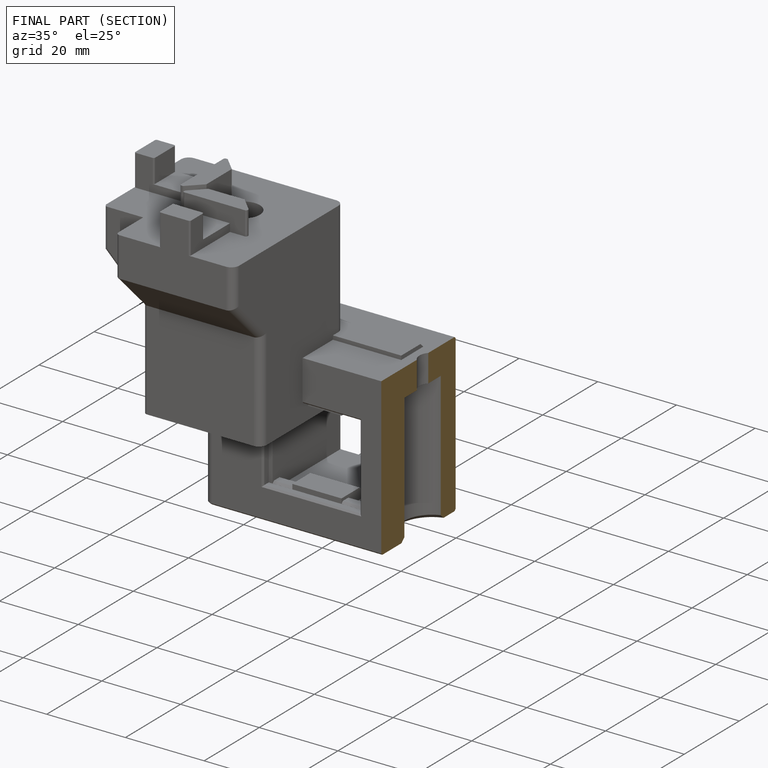
[diagram: finished part — half-section view (interior)]
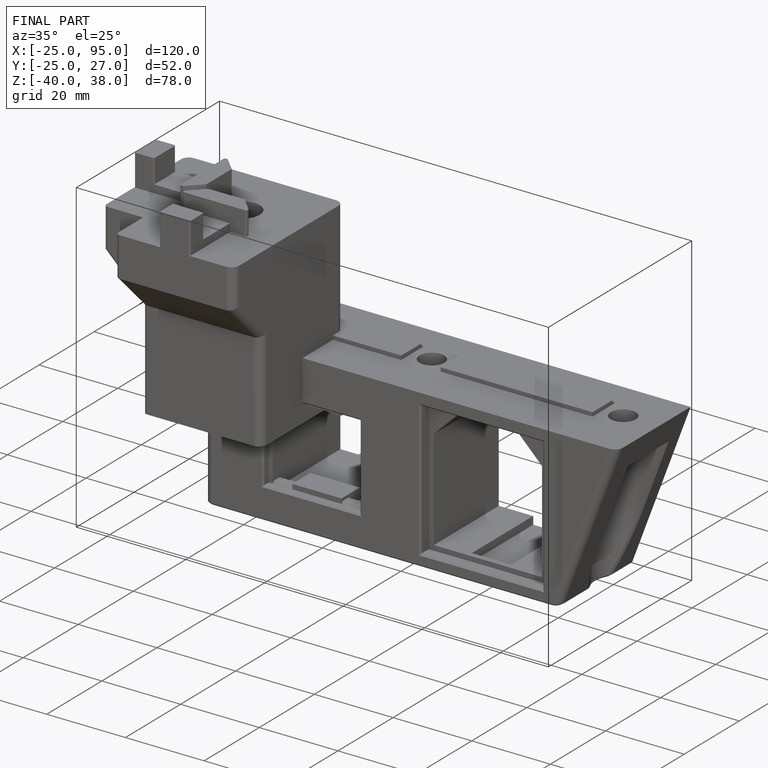
[diagram: finished part — iso view with bounding-box wireframe]
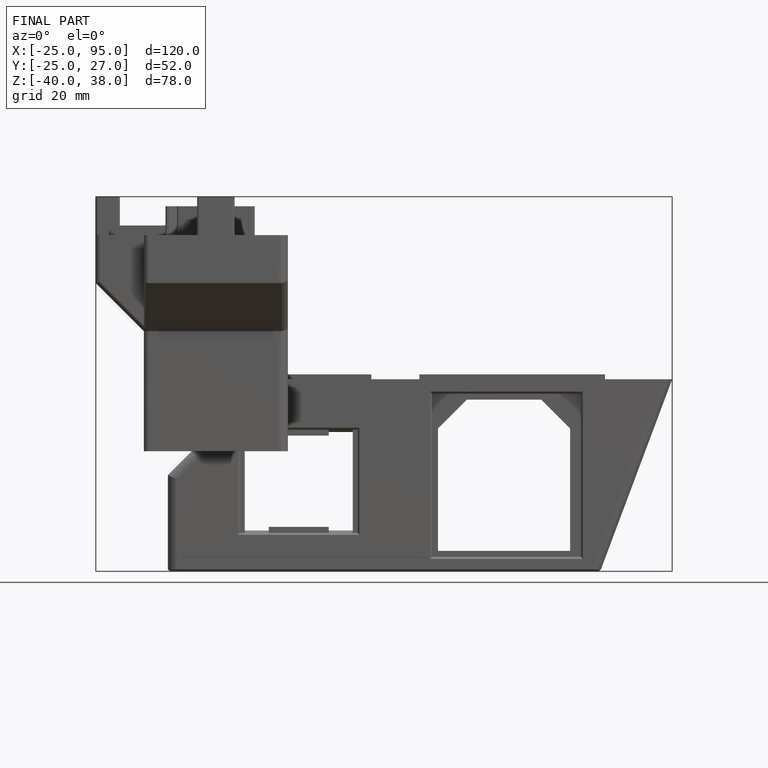
[diagram: finished part — front view with bounding-box wireframe]
